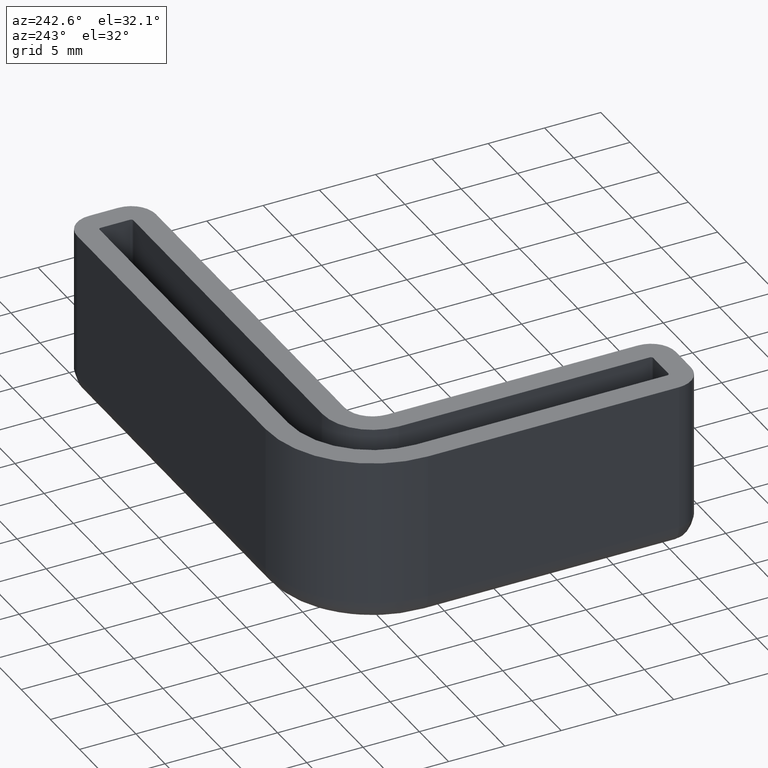
[diagram: clean part render]
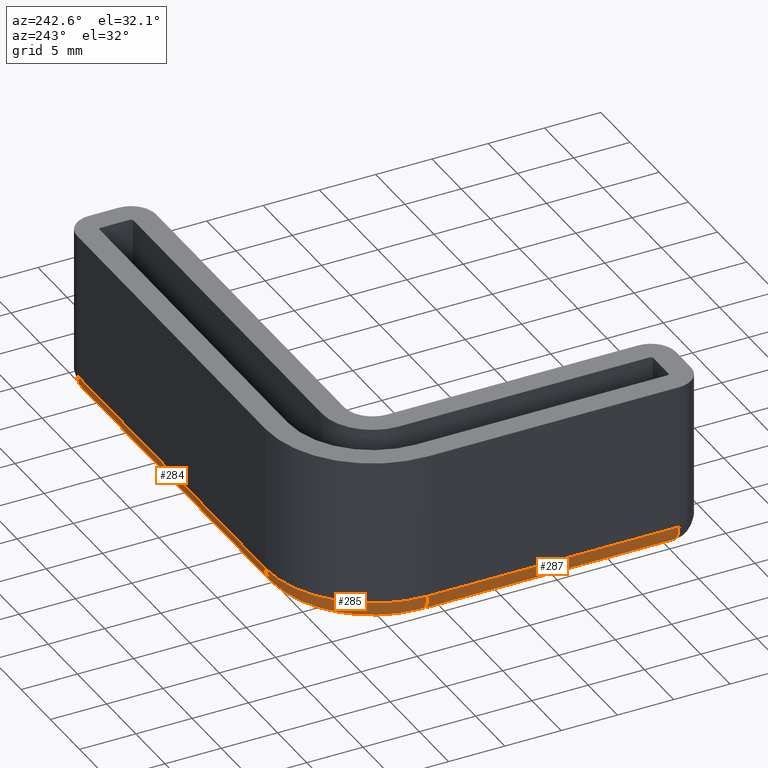
[diagram: same view with one multi-face feature highlighted, each face labeled with its STEP entity id]
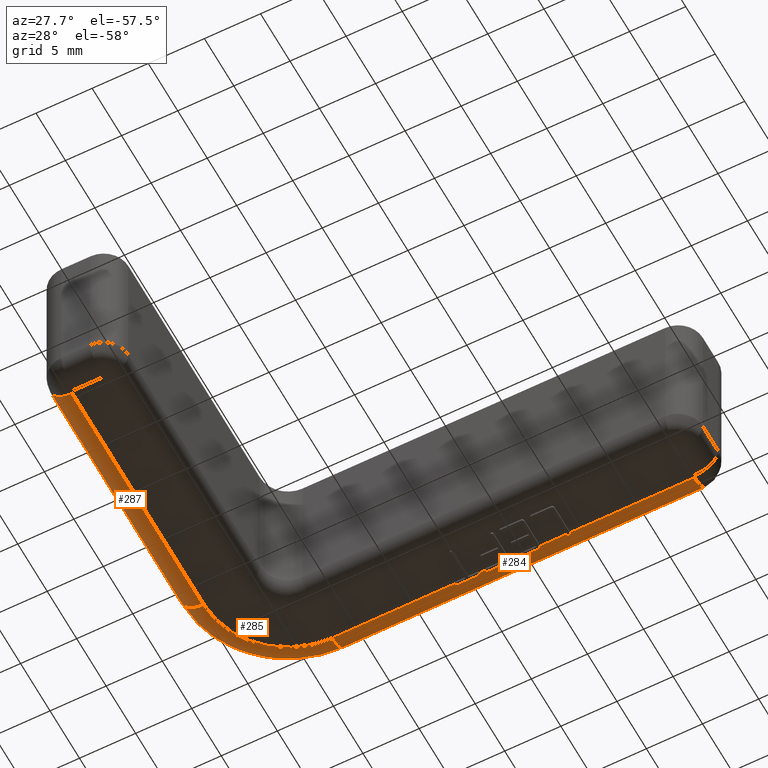
[diagram: same view with one multi-face feature highlighted, each face labeled with its STEP entity id]
A machine part, auxiliary view. The highlighted faces form ONE feature: a constant-radius fillet chain: 3 tangent blend faces with common blend radius 2 mm. The faces share edges in the B-rep.
A second angle (auxiliary view) of the same feature is appended — it is thin or edge-on in the first view.
Their STEP definitions:
[1] entity #287 (Cylinder):
#287 = ADVANCED_FACE( '', ( #366 ), #367, .T. );
#366 = FACE_OUTER_BOUND( '', #504, .T. );
#367 = CYLINDRICAL_SURFACE( '', #505, 2.00000000000000 );
#504 = EDGE_LOOP( '', ( #828, #829, #830, #831 ) );
#505 = AXIS2_PLACEMENT_3D( '', #832, #833, #834 );
#828 = ORIENTED_EDGE( '', *, *, #1243, .T. );
#829 = ORIENTED_EDGE( '', *, *, #1210, .F. );
#830 = ORIENTED_EDGE( '', *, *, #1241, .F. );
#831 = ORIENTED_EDGE( '', *, *, #1238, .F. );
#832 = CARTESIAN_POINT( '', ( -1.27549609329342E-015, -7.50000000000001, -13.0000000000000 ) );
#833 = DIRECTION( '', ( 6.12303176911189E-017, -1.00000000000000, 0.000000000000000 ) );
#834 = DIRECTION( '', ( 0.000000000000000, 0.000000000000000, 1.00000000000000 ) );
#1210 = EDGE_CURVE( '', #1372, #1375, #1376, .T. );
#1238 = EDGE_CURVE( '', #1421, #1400, #1423, .F. );
#1241 = EDGE_CURVE( '', #1400, #1372, #1426, .T. );
#1243 = EDGE_CURVE( '', #1421, #1375, #1428, .T. );
#1372 = VERTEX_POINT( '', #1602 );
#1375 = VERTEX_POINT( '', #1606 );
#1376 = LINE( '', #1607, #1608 );
#1400 = VERTEX_POINT( '', #1644 );
#1421 = VERTEX_POINT( '', #1670 );
#1423 = LINE( '', #1672, #1673 );
#1426 = CIRCLE( '', #1676, 2.00000000000000 );
#1428 = CIRCLE( '', #1678, 2.00000000000000 );
#1602 = CARTESIAN_POINT( '', ( -2.00000000000000, -7.50000000000000, -13.0000000000000 ) );
#1606 = CARTESIAN_POINT( '', ( -2.00000000000000, -29.8000000000000, -13.0000000000000 ) );
#1607 = CARTESIAN_POINT( '', ( -2.00000000000000, -29.8000000000000, -13.0000000000000 ) );
#1608 = VECTOR( '', #2068, 1000.00000000000 );
#1644 = CARTESIAN_POINT( '', ( 4.59227382683391E-016, -7.50000000000000, -15.0000000000000 ) );
#1670 = CARTESIAN_POINT( '', ( 8.99399912185351E-017, -29.8000000000000, -15.0000000000000 ) );
#1672 = CARTESIAN_POINT( '', ( -1.27549609329342E-015, -7.50000000000000, -15.0000000000000 ) );
#1673 = VECTOR( '', #2116, 1000.00000000000 );
#1676 = AXIS2_PLACEMENT_3D( '', #2123, #2124, #2125 );
#1678 = AXIS2_PLACEMENT_3D( '', #2129, #2130, #2131 );
#2068 = DIRECTION( '', ( 6.12303176911189E-017, -1.00000000000000, 0.000000000000000 ) );
#2116 = DIRECTION( '', ( 6.12303176911189E-017, -1.00000000000000, 0.000000000000000 ) );
#2123 = CARTESIAN_POINT( '', ( -1.27549609329342E-015, -7.50000000000000, -13.0000000000000 ) );
#2124 = DIRECTION( '', ( -6.12303176911189E-017, 1.00000000000000, 0.000000000000000 ) );
#2125 = DIRECTION( '', ( 0.000000000000000, 0.000000000000000, 1.00000000000000 ) );
#2129 = CARTESIAN_POINT( '', ( 7.02883389512576E-015, -29.8000000000000, -13.0000000000000 ) );
#2130 = DIRECTION( '', ( 8.61238706219292E-015, 1.00000000000000, 0.000000000000000 ) );
#2131 = DIRECTION( '', ( -1.00000000000000, 8.61238706219292E-015, 0.000000000000000 ) );
[2] entity #285 (Torus):
#285 = ADVANCED_FACE( '', ( #362 ), #363, .T. );
#362 = FACE_OUTER_BOUND( '', #478, .T. );
#363 = TOROIDAL_SURFACE( '', #479, 7.50000000000000, 2.00000000000000 );
#478 = EDGE_LOOP( '', ( #817, #818, #819, #820 ) );
#479 = AXIS2_PLACEMENT_3D( '', #821, #822, #823 );
#817 = ORIENTED_EDGE( '', *, *, #1241, .T. );
#818 = ORIENTED_EDGE( '', *, *, #1208, .F. );
#819 = ORIENTED_EDGE( '', *, *, #1240, .F. );
#820 = ORIENTED_EDGE( '', *, *, #1227, .F. );
#821 = CARTESIAN_POINT( '', ( 7.50000000000000, -7.50000000000000, -13.0000000000000 ) );
#822 = DIRECTION( '', ( 0.000000000000000, 0.000000000000000, 1.00000000000000 ) );
#823 = DIRECTION( '', ( 6.12303176911189E-017, -1.00000000000000, 0.000000000000000 ) );
#1208 = EDGE_CURVE( '', #1369, #1372, #1373, .T. );
#1227 = EDGE_CURVE( '', #1400, #1401, #1402, .F. );
#1240 = EDGE_CURVE( '', #1401, #1369, #1425, .T. );
#1241 = EDGE_CURVE( '', #1400, #1372, #1426, .T. );
#1369 = VERTEX_POINT( '', #1597 );
#1372 = VERTEX_POINT( '', #1602 );
#1373 = CIRCLE( '', #1603, 9.50000000000000 );
#1400 = VERTEX_POINT( '', #1644 );
#1401 = VERTEX_POINT( '', #1645 );
#1402 = CIRCLE( '', #1646, 7.50000000000000 );
#1425 = CIRCLE( '', #1675, 2.00000000000000 );
#1426 = CIRCLE( '', #1676, 2.00000000000000 );
#1597 = CARTESIAN_POINT( '', ( 7.50000000000001, 2.00000000000000, -13.0000000000000 ) );
#1602 = CARTESIAN_POINT( '', ( -2.00000000000000, -7.50000000000000, -13.0000000000000 ) );
#1603 = AXIS2_PLACEMENT_3D( '', #2064, #2065, #2066 );
#1644 = CARTESIAN_POINT( '', ( 4.59227382683391E-016, -7.50000000000000, -15.0000000000000 ) );
#1645 = CARTESIAN_POINT( '', ( 7.50000000000001, 1.56960490611813E-015, -15.0000000000000 ) );
#1646 = AXIS2_PLACEMENT_3D( '', #2093, #2094, #2095 );
#1675 = AXIS2_PLACEMENT_3D( '', #2120, #2121, #2122 );
#1676 = AXIS2_PLACEMENT_3D( '', #2123, #2124, #2125 );
#2064 = CARTESIAN_POINT( '', ( 7.50000000000000, -7.50000000000000, -13.0000000000000 ) );
#2065 = DIRECTION( '', ( 0.000000000000000, 0.000000000000000, 1.00000000000000 ) );
#2066 = DIRECTION( '', ( 6.12303176911189E-017, -1.00000000000000, 0.000000000000000 ) );
#2093 = CARTESIAN_POINT( '', ( 7.50000000000000, -7.50000000000000, -15.0000000000000 ) );
#2094 = DIRECTION( '', ( 0.000000000000000, 0.000000000000000, 1.00000000000000 ) );
#2095 = DIRECTION( '', ( 6.12303176911189E-017, -1.00000000000000, 0.000000000000000 ) );
#2120 = CARTESIAN_POINT( '', ( 7.50000000000001, 1.56960490611813E-015, -13.0000000000000 ) );
#2121 = DIRECTION( '', ( 1.00000000000000, 6.12303176911189E-017, 0.000000000000000 ) );
#2122 = DIRECTION( '', ( 0.000000000000000, 0.000000000000000, 1.00000000000000 ) );
#2123 = CARTESIAN_POINT( '', ( -1.27549609329342E-015, -7.50000000000000, -13.0000000000000 ) );
#2124 = DIRECTION( '', ( -6.12303176911189E-017, 1.00000000000000, 0.000000000000000 ) );
#2125 = DIRECTION( '', ( 0.000000000000000, 0.000000000000000, 1.00000000000000 ) );
[3] entity #284 (Cylinder):
#284 = ADVANCED_FACE( '', ( #360 ), #361, .T. );
#360 = FACE_OUTER_BOUND( '', #476, .T. );
#361 = CYLINDRICAL_SURFACE( '', #477, 2.00000000000000 );
#476 = EDGE_LOOP( '', ( #810, #811, #812, #813 ) );
#477 = AXIS2_PLACEMENT_3D( '', #814, #815, #816 );
#810 = ORIENTED_EDGE( '', *, *, #1239, .T. );
#811 = ORIENTED_EDGE( '', *, *, #1228, .F. );
#812 = ORIENTED_EDGE( '', *, *, #1240, .T. );
#813 = ORIENTED_EDGE( '', *, *, #1206, .F. );
#814 = CARTESIAN_POINT( '', ( 39.8000000000000, -1.65118569858680E-016, -13.0000000000000 ) );
#815 = DIRECTION( '', ( -1.00000000000000, 0.000000000000000, 0.000000000000000 ) );
#816 = DIRECTION( '', ( 0.000000000000000, 1.00000000000000, 0.000000000000000 ) );
#1206 = EDGE_CURVE( '', #1339, #1369, #1370, .T. );
#1228 = EDGE_CURVE( '', #1401, #1403, #1404, .F. );
#1239 = EDGE_CURVE( '', #1339, #1403, #1424, .T. );
#1240 = EDGE_CURVE( '', #1401, #1369, #1425, .T. );
#1339 = VERTEX_POINT( '', #1557 );
#1369 = VERTEX_POINT( '', #1597 );
#1370 = LINE( '', #1598, #1599 );
#1401 = VERTEX_POINT( '', #1645 );
#1403 = VERTEX_POINT( '', #1647 );
#1404 = LINE( '', #1648, #1649 );
#1424 = CIRCLE( '', #1674, 2.00000000000000 );
#1425 = CIRCLE( '', #1675, 2.00000000000000 );
#1557 = CARTESIAN_POINT( '', ( 39.8000000000000, 2.00000000000000, -13.0000000000000 ) );
#1597 = CARTESIAN_POINT( '', ( 7.50000000000001, 2.00000000000000, -13.0000000000000 ) );
#1598 = CARTESIAN_POINT( '', ( 7.50000000000001, 2.00000000000000, -13.0000000000000 ) );
#1599 = VECTOR( '', #2062, 1000.00000000000 );
#1645 = CARTESIAN_POINT( '', ( 7.50000000000001, 1.56960490611813E-015, -15.0000000000000 ) );
#1647 = CARTESIAN_POINT( '', ( 39.8000000000000, 4.60537098907754E-015, -15.0000000000000 ) );
#1648 = CARTESIAN_POINT( '', ( 39.8000000000000, -1.65118569858680E-016, -15.0000000000000 ) );
#1649 = VECTOR( '', #2096, 1000.00000000000 );
#1674 = AXIS2_PLACEMENT_3D( '', #2117, #2118, #2119 );
#1675 = AXIS2_PLACEMENT_3D( '', #2120, #2121, #2122 );
#2062 = DIRECTION( '', ( -1.00000000000000, 0.000000000000000, 0.000000000000000 ) );
#2096 = DIRECTION( '', ( -1.00000000000000, 0.000000000000000, 0.000000000000000 ) );
#2117 = CARTESIAN_POINT( '', ( 39.8000000000000, 4.60537098907754E-015, -13.0000000000000 ) );
#2118 = DIRECTION( '', ( -1.00000000000000, -6.12303176911189E-017, 0.000000000000000 ) );
#2119 = DIRECTION( '', ( 0.000000000000000, 0.000000000000000, -1.00000000000000 ) );
#2120 = CARTESIAN_POINT( '', ( 7.50000000000001, 1.56960490611813E-015, -13.0000000000000 ) );
#2121 = DIRECTION( '', ( 1.00000000000000, 6.12303176911189E-017, 0.000000000000000 ) );
#2122 = DIRECTION( '', ( 0.000000000000000, 0.000000000000000, 1.00000000000000 ) );